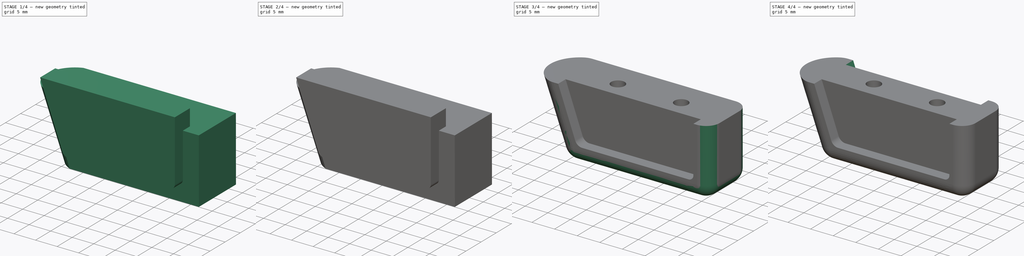
[diagram: build sequence overview — one tinted view per stage of 4, left to right]
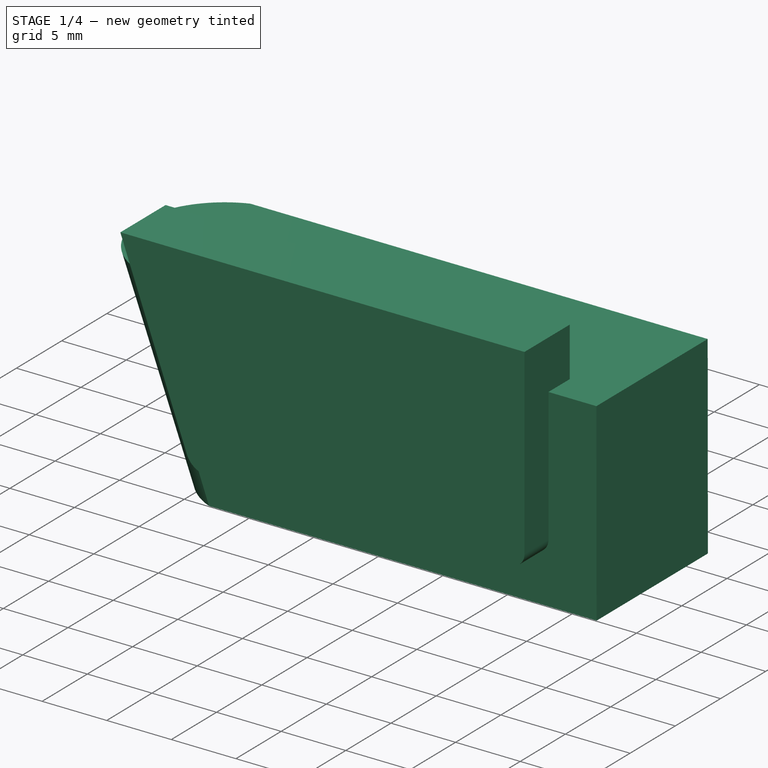
[diagram: stage 1 of 4 — iso view after this stage's code; geometry added in this stage tinted green]
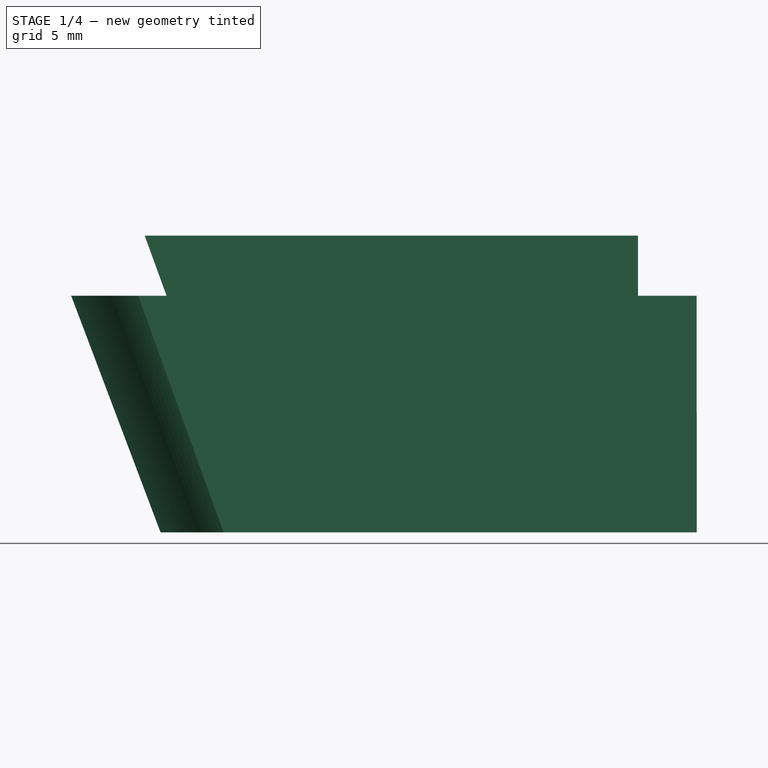
[diagram: stage 1 of 4 — front view after this stage's code; geometry added in this stage tinted green]
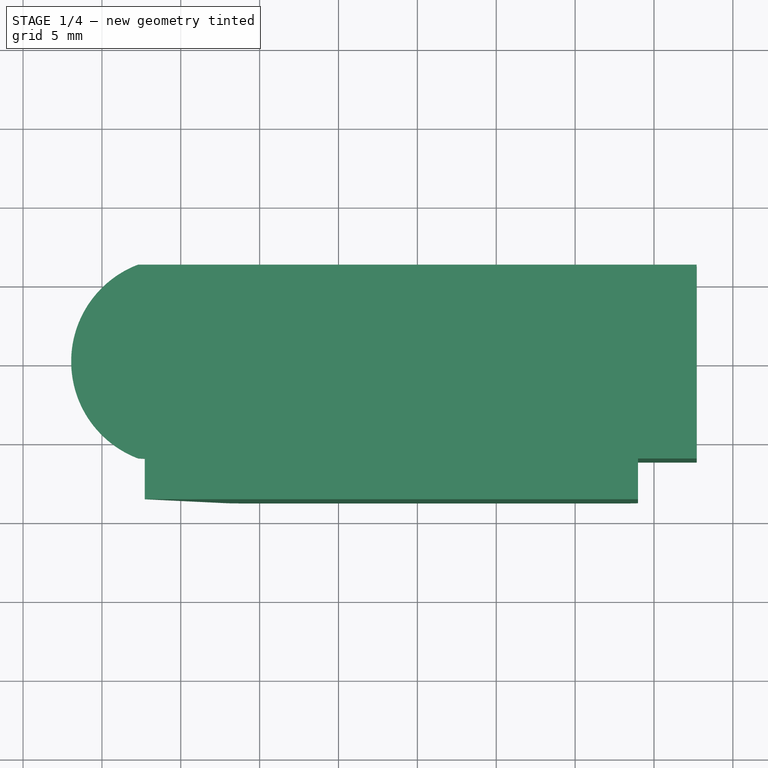
[diagram: stage 1 of 4 — top view after this stage's code; geometry added in this stage tinted green]
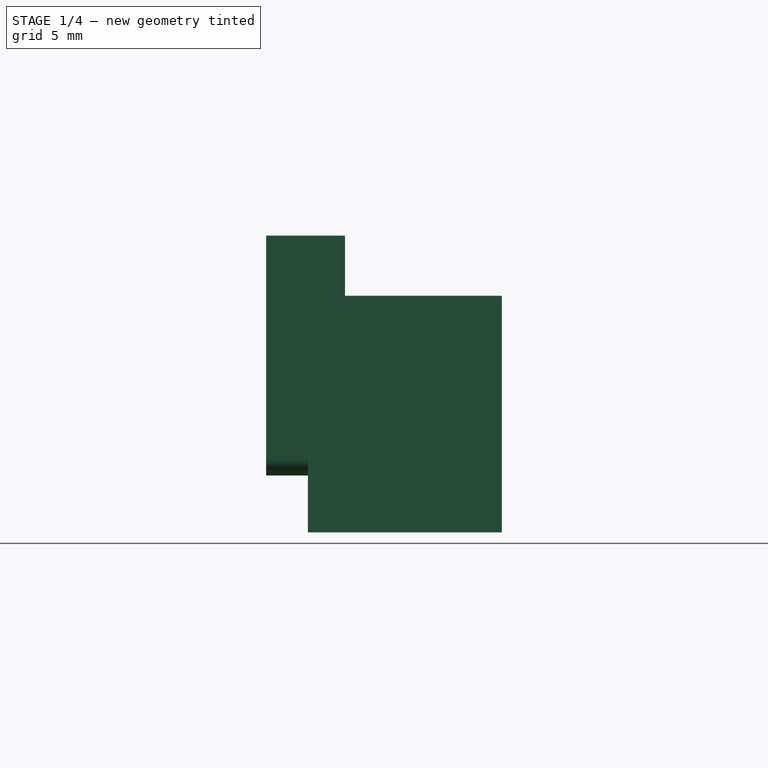
[diagram: stage 1 of 4 — right view after this stage's code; geometry added in this stage tinted green]
FCSTD DOCUMENT  (FreeCAD 0.16R6700 (Git))
Label: Magazine Bumper Pad 15mm - v2
License: FreeArt
LicenseURL: http://artlibre.org/licence/lal
objects: Sketcher::SketchObject×6, PartDesign::Pocket×2, PartDesign::Fillet×2, PartDesign::Pad×2, Part::Cut×2, Part::Loft×1
note: 19 computed .brp shape members not serialized (recipe doc carries the construction recipe); baked Part::Feature solids carry a one-line shape summary decoded from their .brp

FEATURE [Sketcher::SketchObject] Sketch
  sketch-geometry (6):
    g0: LineSegment StartX=-17.7 StartY=6.15 StartZ=0 EndX=17.7 EndY=6.15 EndZ=0
    g1: LineSegment StartX=17.7 StartY=6.15 StartZ=0 EndX=17.7 EndY=-6.15 EndZ=0
    g2: LineSegment StartX=17.7 StartY=-6.15 StartZ=0 EndX=-17.7 EndY=-6.15 EndZ=0
    g3: LineSegment [constr] StartX=-17.7 StartY=6.15 StartZ=0 EndX=-17.7 EndY=-6.15 EndZ=0
    g4: LineSegment [constr] StartX=17.7 StartY=0 StartZ=0 EndX=-21.95 EndY=0 EndZ=0
    g5: ArcOfCircle CenterX=-15.3753 CenterY=0 CenterZ=0 NormalX=0 NormalY=0 NormalZ=1 Radius=6.57471 StartAngle=1.9322 EndAngle=4.35099
  constraints (19):
    c: Horizontal(g0)
    c: Coincident(g0,g1)
    c: Vertical(g1)
    c: Coincident(g1,g2)
    c: Horizontal(g2)
    c: DistanceY(g1,g1) = 12.3
    c: Equal(g0,g2)
    c: DistanceX(g0,g0) = 35.4
    c: Coincident(g3,g0)
    c: Coincident(g3,g2)
    c: Symmetric(g0,g1,g-1)
    c: Symmetric(g0,g0,g-2)
    c: PointOnObject(g4,g1)
    c: Horizontal(g4)
    c: PointOnObject(g4,g-1)
    c: Distance(g4) = 39.65
    c: Coincident(g5,g0)
    c: Coincident(g5,g2)
    c: PointOnObject(g4,g5)
FEATURE [Sketcher::SketchObject] Sketch001
  Placement = pos=(0,0,-15) rot=(0,0,1;0rad)
  sketch-geometry (6):
    g0: LineSegment StartX=-12.2848 StartY=-6.15 StartZ=0 EndX=17.7152 EndY=-6.15 EndZ=0
    g1: LineSegment StartX=17.7152 StartY=-6.15 StartZ=0 EndX=17.7152 EndY=6.15 EndZ=0
    g2: LineSegment StartX=17.7152 StartY=6.15 StartZ=0 EndX=-12.2848 EndY=6.15 EndZ=0
    g3: GeomPoint [constr] X=17.7152 Y=0 Z=0
    g4: LineSegment [constr] StartX=-16.2848 StartY=0 StartZ=0 EndX=17.7152 EndY=0 EndZ=0
    g5: ArcOfCircle CenterX=-9.55699 CenterY=0 CenterZ=0 NormalX=0 NormalY=0 NormalZ=1 Radius=6.72781 StartAngle=1.98827 EndAngle=4.29491
  constraints (18):
    c: Horizontal(g0)
    c: Coincident(g0,g1)
    c: Vertical(g1)
    c: Coincident(g1,g2)
    c: Horizontal(g2)
    c: Symmetric(g1,g0,g-1)
    c: PointOnObject(g3,g-1)
    c: DistanceX(g-2,g3) = 17.7152
    c: PointOnObject(g3,g1)
    c: DistanceY(g1,g1) = 12.3
    c: Equal(g0,g2)
    c: DistanceX(g0,g0) = 30
    c: PointOnObject(g4,g-1)
    c: Coincident(g4,g3)
    c: DistanceX(g4,g4) = 34
    c: Coincident(g5,g0)
    c: Coincident(g5,g2)
    c: PointOnObject(g4,g5)
FEATURE [Part::Loft] Loft  label="Solido"
  Closed = false
  Ruled = false
  Sections = -> [Sketch,Sketch001]
  Solid = true
FEATURE [Sketcher::SketchObject] Sketch004
  Placement = pos=(0,-6.3,0) rot=(1,0,0;1.5708rad)
  sketch-geometry (6):
    g0: LineSegment StartX=-17.2882 StartY=3.81376 StartZ=0 EndX=13.9901 EndY=3.81376 EndZ=0
    g1: LineSegment StartX=13.9901 StartY=3.81376 StartZ=0 EndX=13.9901 EndY=-10.3321 EndZ=0
    g2: LineSegment StartX=12.9273 StartY=-11.3949 StartZ=0 EndX=-10.6085 EndY=-11.3949 EndZ=0
    g3: LineSegment StartX=-12.1441 StartY=-10.3197 StartZ=0 EndX=-17.2882 EndY=3.81376 EndZ=0
    g4: ArcOfCircle CenterX=-10.6085 CenterY=-9.76078 CenterZ=0 NormalX=0 NormalY=0 NormalZ=1 Radius=1.63408 StartAngle=3.49066 EndAngle=4.71239
    g5: ArcOfCircle CenterX=12.9273 CenterY=-10.3321 CenterZ=0 NormalX=0 NormalY=0 NormalZ=1 Radius=1.06278 StartAngle=4.71239 EndAngle=6.28319
  constraints (10):
    c: Coincident(g0,g1)
    c: Coincident(g3,g0)
    c: Horizontal(g0)
    c: Horizontal(g2)
    c: Vertical(g1)
    c: Tangent(g3,g4) = 1.5708
    c: Tangent(g2,g4) = 1.5708
    c: Tangent(g2,g5) = 1.5708
    c: Tangent(g1,g5) = 1.5708
    c: Angle(g2,g3) = 1.91986
FEATURE [PartDesign::Pad] Pad  label="Corte da Direita"
  Length = 5
  Length2 = 100
  Midplane = true
  Placement = pos=(0,-6.3,0) rot=(1,0,0;1.5708rad)
  Sketch = -> Sketch004
  Type = 0
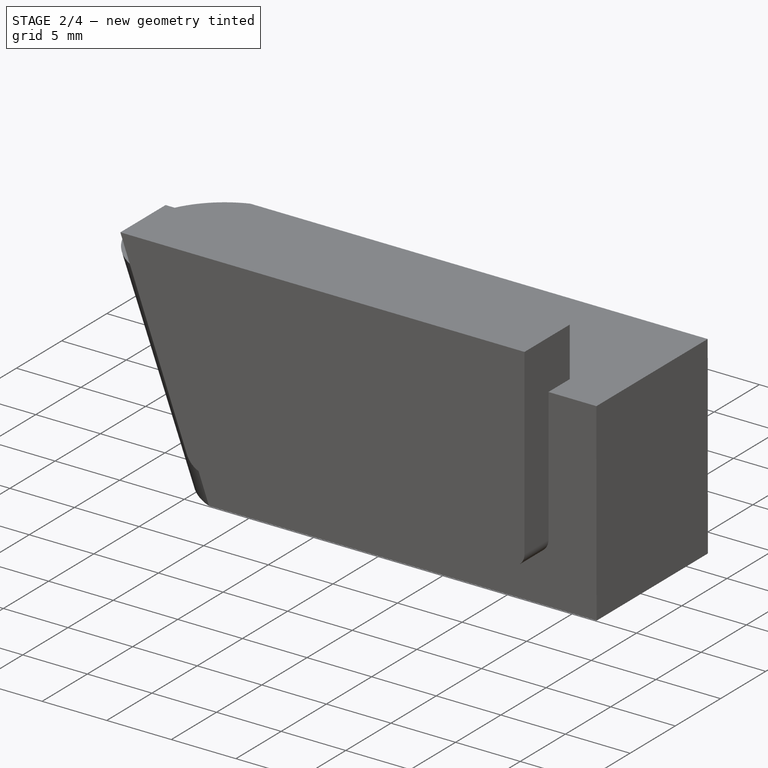
[diagram: stage 2 of 4 — iso view after this stage's code; geometry added in this stage tinted green]
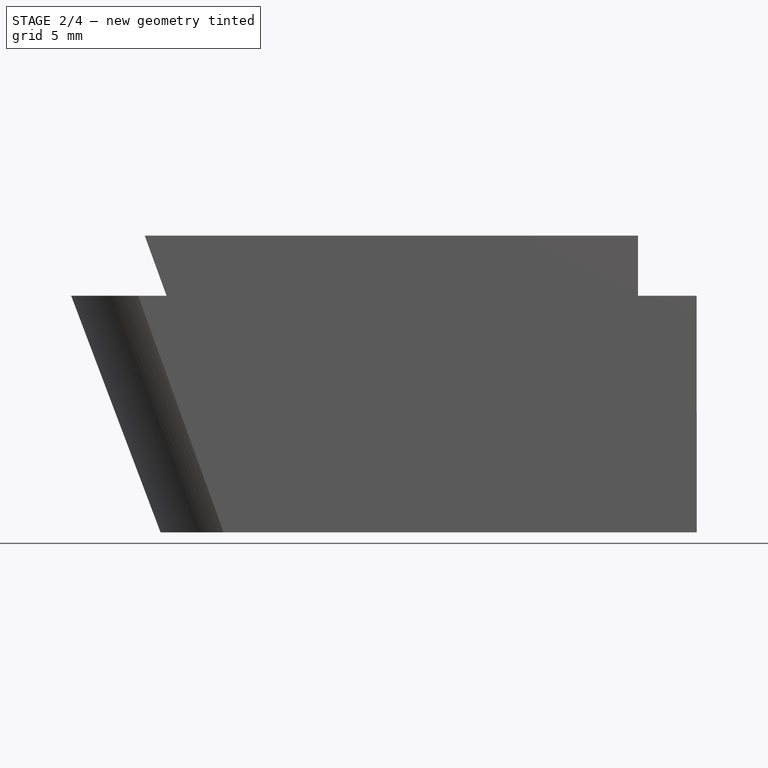
[diagram: stage 2 of 4 — front view after this stage's code; geometry added in this stage tinted green]
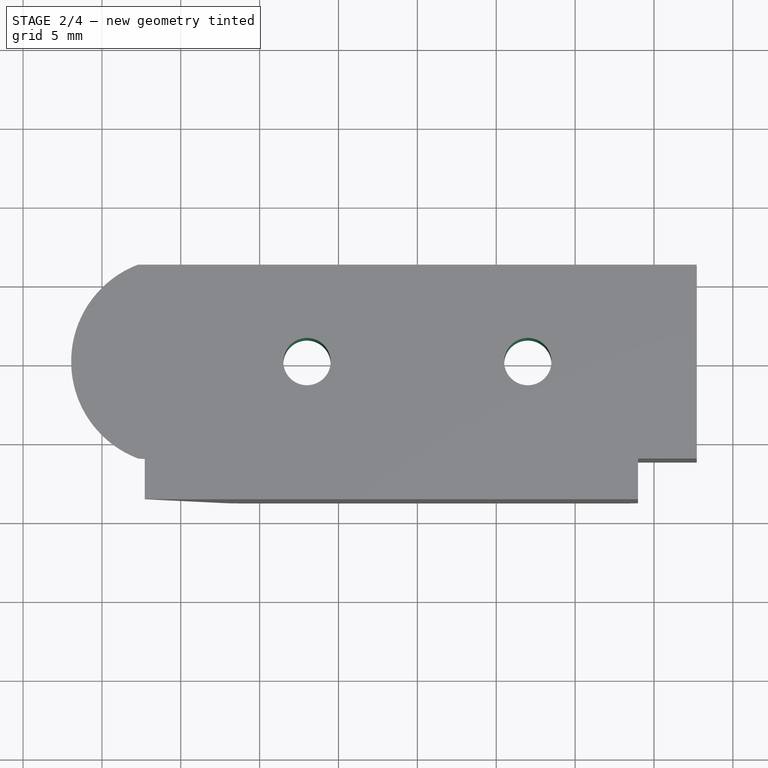
[diagram: stage 2 of 4 — top view after this stage's code; geometry added in this stage tinted green]
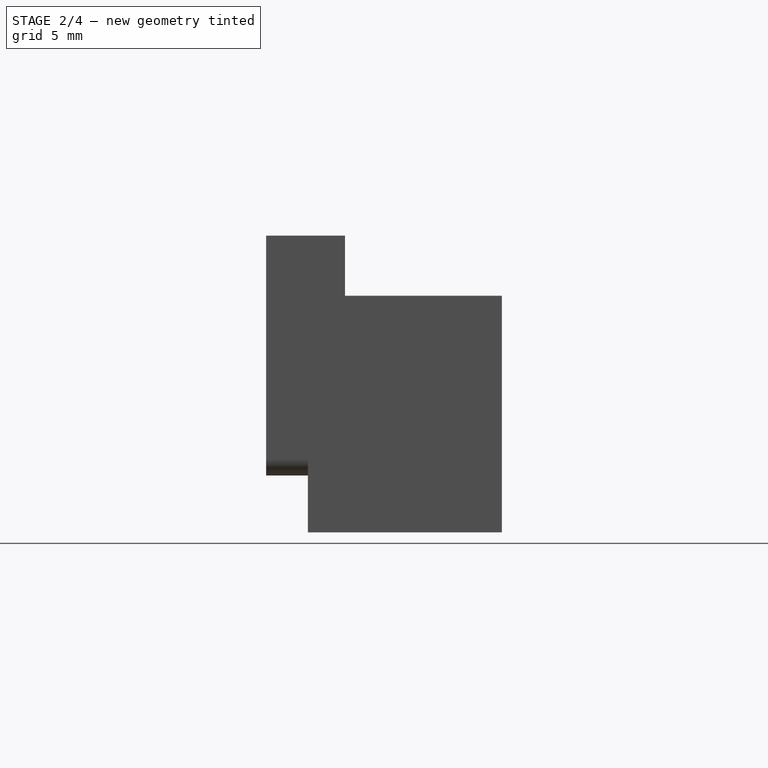
[diagram: stage 2 of 4 — right view after this stage's code; geometry added in this stage tinted green]
FEATURE [Sketcher::SketchObject] Sketch002
  Placement = pos=(0,0,-15) rot=(1,0,0;3.14159rad)
  Support = -> Loft [Face6]
  sketch-geometry (2):
    g0: Circle CenterX=-7 CenterY=0 CenterZ=0 NormalX=0 NormalY=0 NormalZ=1 Radius=1.5
    g1: Circle CenterX=7 CenterY=0 CenterZ=0 NormalX=0 NormalY=0 NormalZ=1 Radius=1.5
  constraints (6):
    c: PointOnObject(g0,g-1)
    c: PointOnObject(g1,g-1)
    c: Radius(g0) = 1.5
    c: Radius(g1) = 1.5
    c: Symmetric(g0,g1,g-2)
    c: DistanceX(g-2,g1) = 7
FEATURE [PartDesign::Pocket] Pocket  label="Furos Parafusos"
  Length = 5
  Sketch = -> Sketch002
  Type = 1
FEATURE [Sketcher::SketchObject] Sketch003
  Placement = pos=(0,0,-15) rot=(1,0,0;3.14159rad)
  Support = -> Pocket [Face4]
  sketch-geometry (2):
    g0: Circle CenterX=-7 CenterY=0 CenterZ=0 NormalX=0 NormalY=0 NormalZ=1 Radius=3
    g1: Circle CenterX=7 CenterY=0 CenterZ=0 NormalX=0 NormalY=0 NormalZ=1 Radius=3
  constraints (6):
    c: PointOnObject(g0,g-1)
    c: PointOnObject(g1,g-1)
    c: Radius(g1) = 3
    c: Radius(g0) = 3
    c: Symmetric(g0,g1,g-2)
    c: DistanceX(g-2,g1) = 7
FEATURE [PartDesign::Pocket] Pocket001
  Length = 5
  Sketch = -> Sketch003
  Type = 0
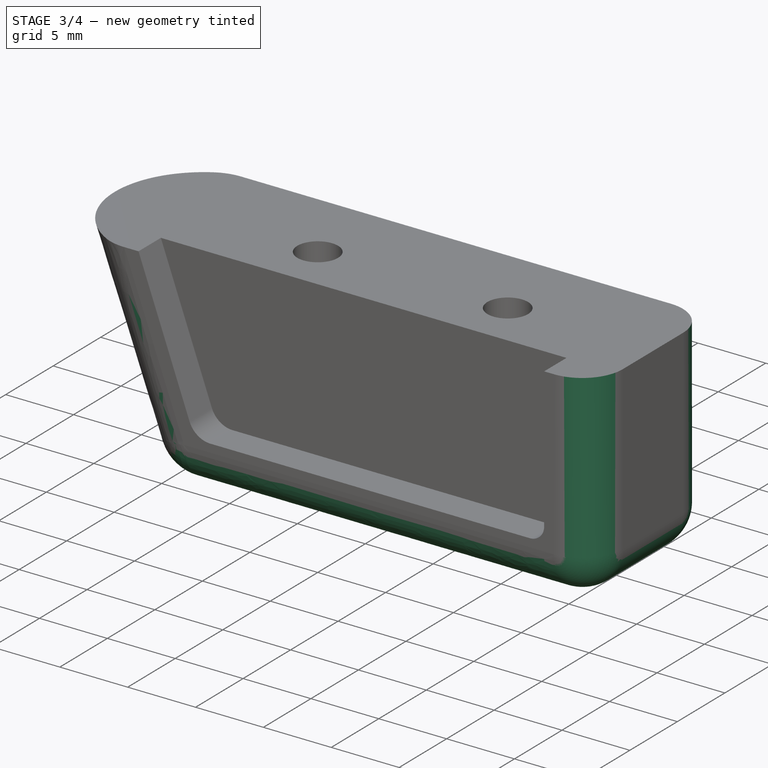
[diagram: stage 3 of 4 — iso view after this stage's code; geometry added in this stage tinted green]
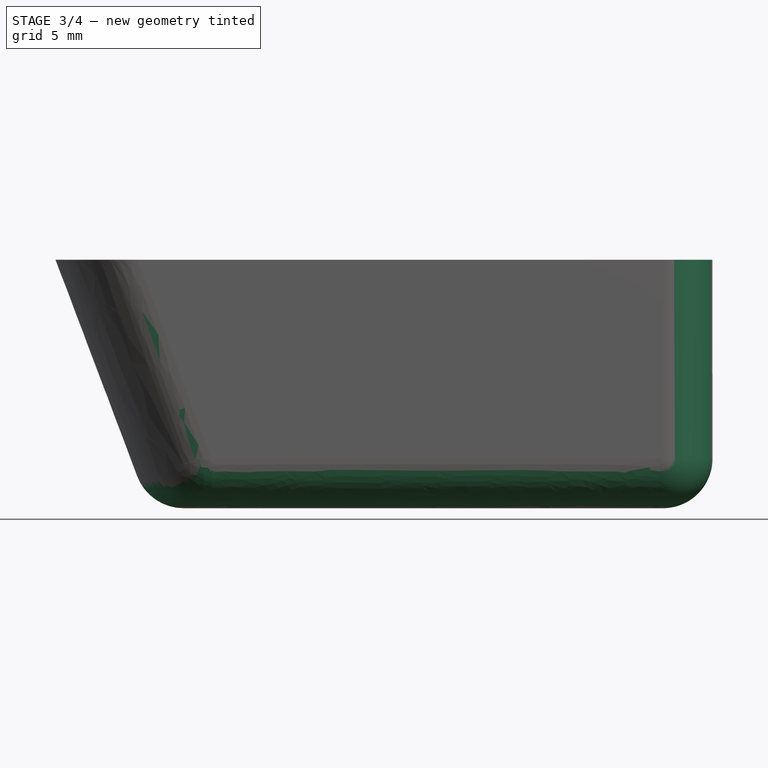
[diagram: stage 3 of 4 — front view after this stage's code; geometry added in this stage tinted green]
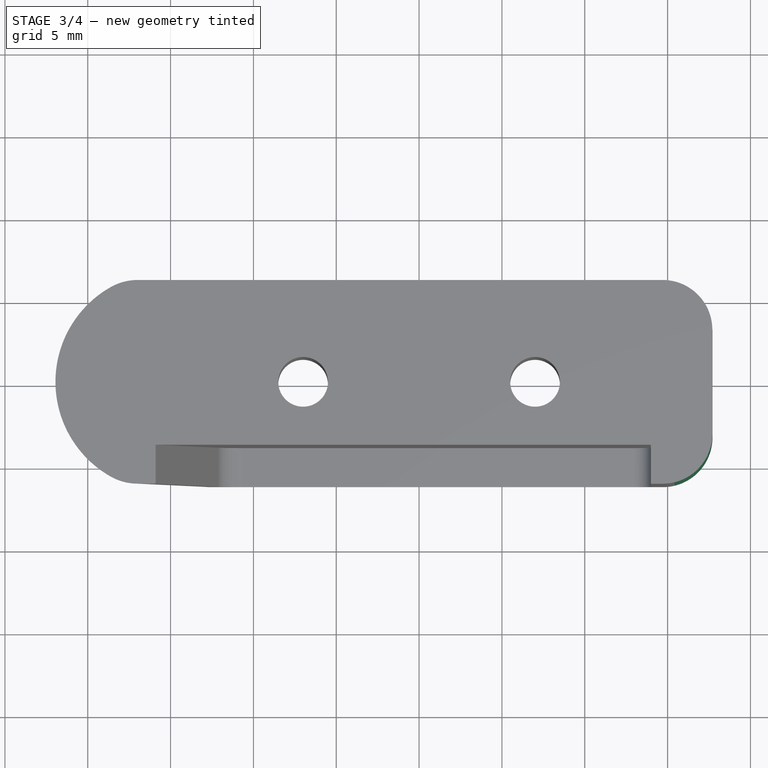
[diagram: stage 3 of 4 — top view after this stage's code; geometry added in this stage tinted green]
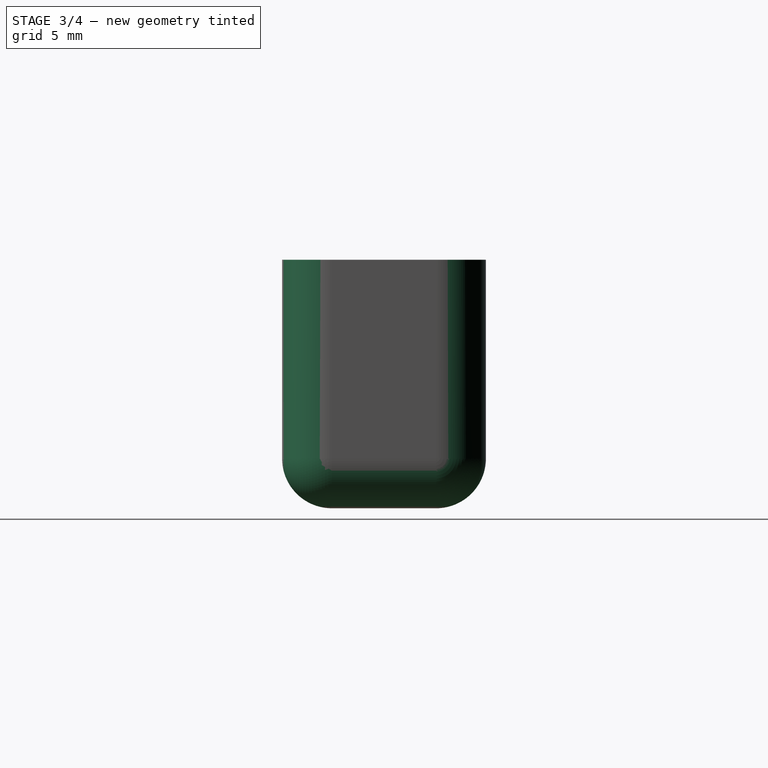
[diagram: stage 3 of 4 — right view after this stage's code; geometry added in this stage tinted green]
FEATURE [PartDesign::Fillet] Fillet  label="Chanfros Laterais"
  Base = -> Pocket001 [Edge3,Edge11,Edge13,Edge2,Edge10]
  Radius = 3
FEATURE [PartDesign::Fillet] Fillet001  label="Chanfro Frontal"
  Base = -> Fillet [Edge3,Edge14,Edge15,Edge17,Edge16]
  Radius = 3
FEATURE [Part::Cut] Cut
  Base = -> Fillet001
  Tool = -> Pad
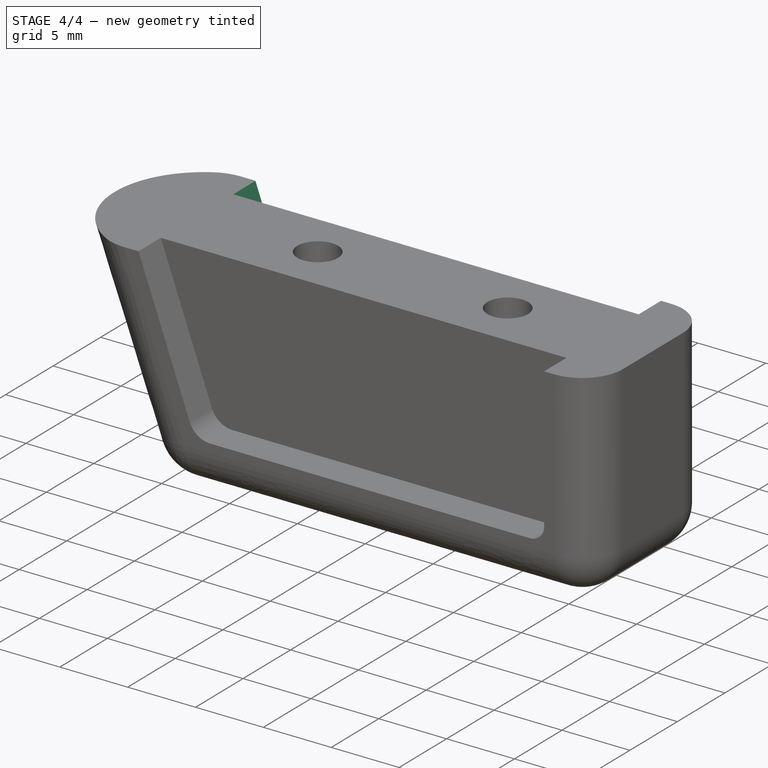
[diagram: stage 4 of 4 — iso view after this stage's code; geometry added in this stage tinted green]
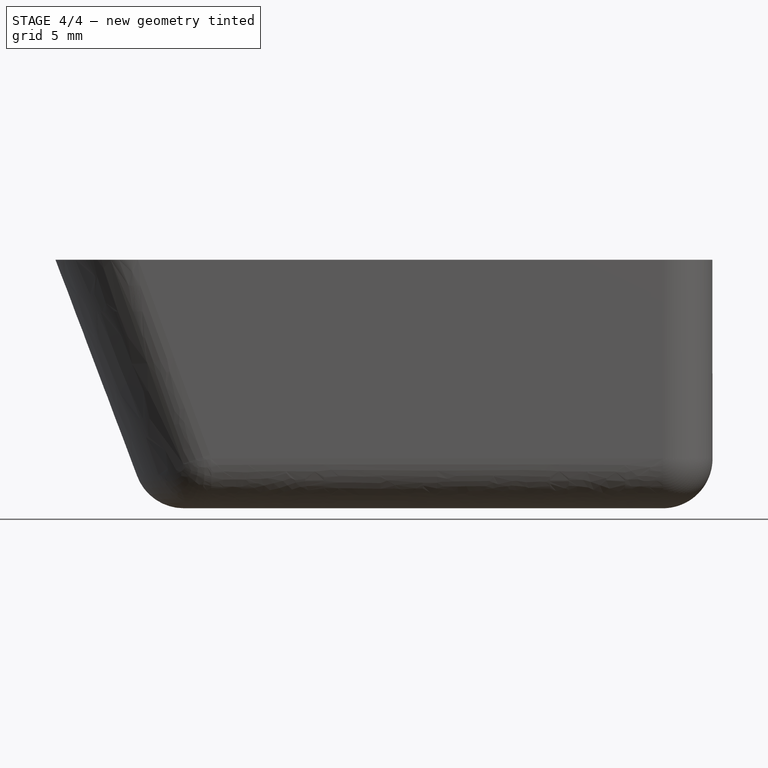
[diagram: stage 4 of 4 — front view after this stage's code; geometry added in this stage tinted green]
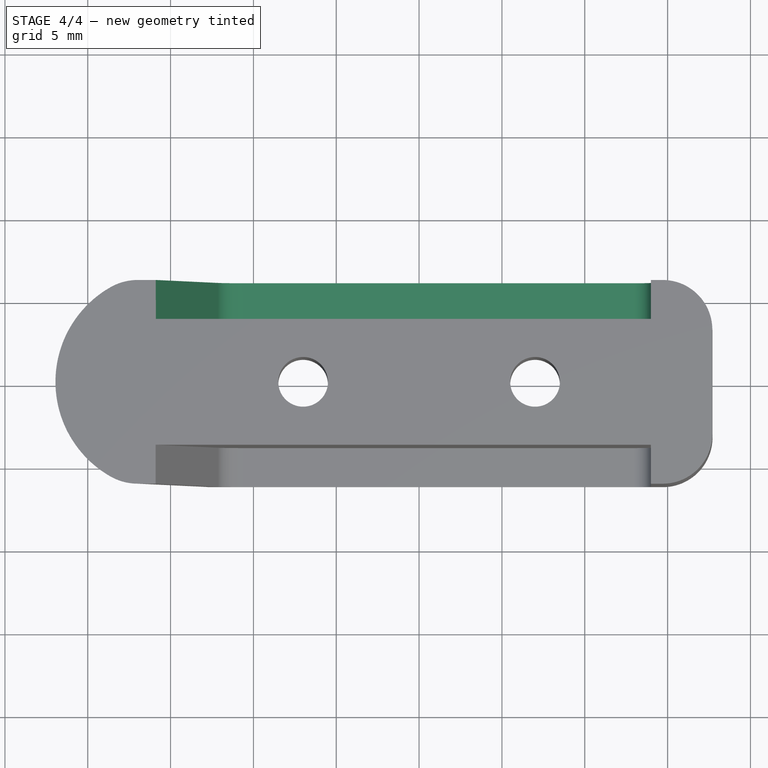
[diagram: stage 4 of 4 — top view after this stage's code; geometry added in this stage tinted green]
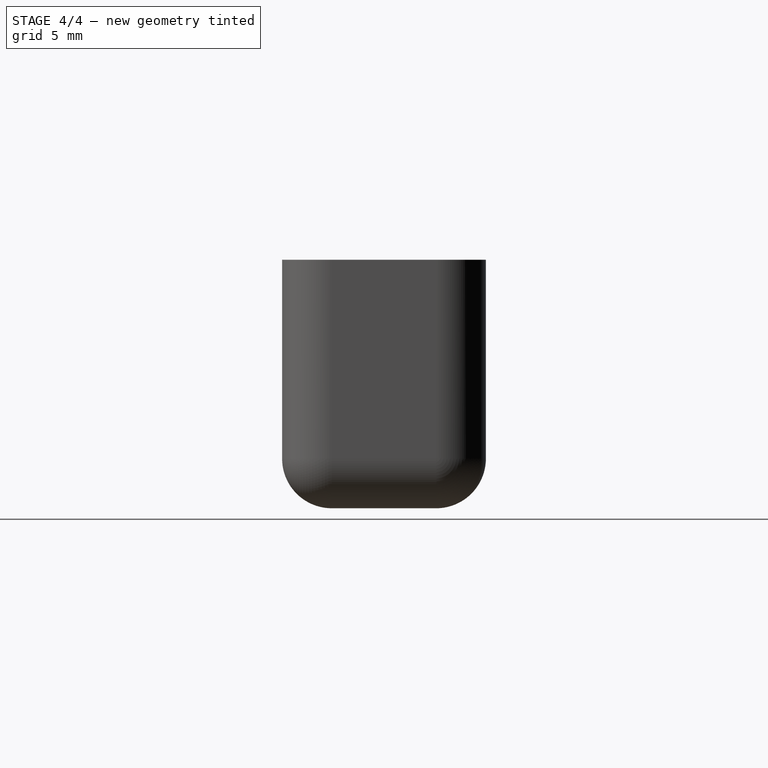
[diagram: stage 4 of 4 — right view after this stage's code; geometry added in this stage tinted green]
FEATURE [Sketcher::SketchObject] Sketch005
  Placement = pos=(0,6.3,0) rot=(1,0,0;1.55334rad)
  sketch-geometry (6):
    g0: LineSegment StartX=-17.2882 StartY=3.81376 StartZ=0 EndX=13.9901 EndY=3.81376 EndZ=0
    g1: LineSegment StartX=13.9901 StartY=3.81376 StartZ=0 EndX=13.9901 EndY=-10.3321 EndZ=0
    g2: LineSegment StartX=12.9273 StartY=-11.3949 StartZ=0 EndX=-10.6085 EndY=-11.3949 EndZ=0
    g3: LineSegment StartX=-12.1441 StartY=-10.3197 StartZ=0 EndX=-17.2882 EndY=3.81376 EndZ=0
    g4: ArcOfCircle CenterX=-10.6085 CenterY=-9.76078 CenterZ=0 NormalX=0 NormalY=0 NormalZ=1 Radius=1.63408 StartAngle=3.49066 EndAngle=4.71239
    g5: ArcOfCircle CenterX=12.9273 CenterY=-10.3321 CenterZ=0 NormalX=0 NormalY=0 NormalZ=1 Radius=1.06278 StartAngle=4.71239 EndAngle=6.28319
  constraints (10):
    c: Coincident(g0,g1)
    c: Coincident(g3,g0)
    c: Horizontal(g0)
    c: Horizontal(g2)
    c: Vertical(g1)
    c: Tangent(g3,g4) = 1.5708
    c: Tangent(g2,g4) = 1.5708
    c: Tangent(g2,g5) = 1.5708
    c: Tangent(g1,g5) = 1.5708
    c: Angle(g2,g3) = 1.91986
FEATURE [PartDesign::Pad] Pad001  label="Corte da Esquerda"
  Length = 5
  Length2 = 100
  Midplane = true
  Placement = pos=(0,6.3,0) rot=(1,0,0;1.55334rad)
  Sketch = -> Sketch005
  Type = 0
FEATURE [Part::Cut] Cut001  label="Cortes Externos"
  Base = -> Cut
  Tool = -> Pad001
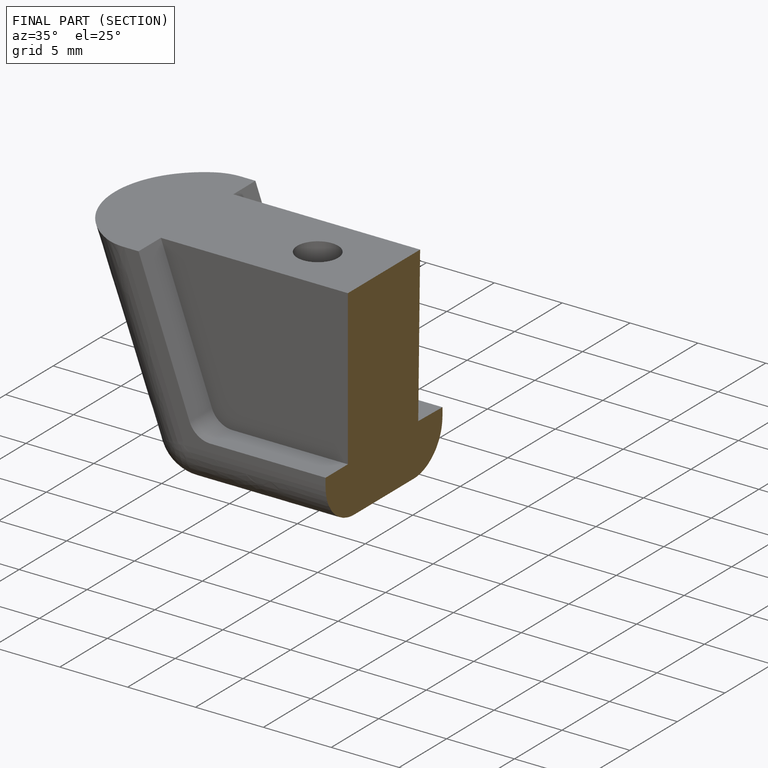
[diagram: finished part — half-section view (interior)]
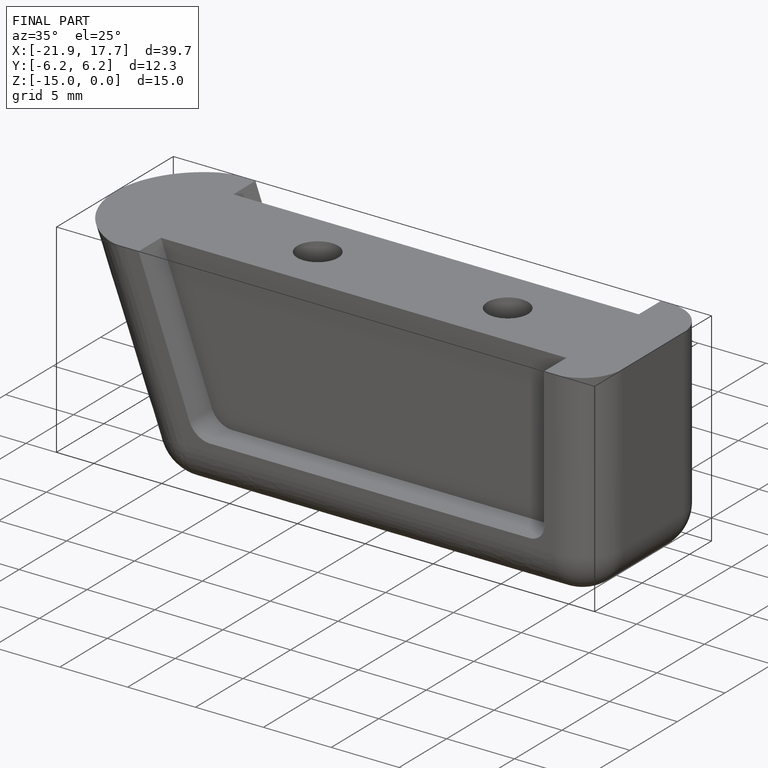
[diagram: finished part — iso view with bounding-box wireframe]
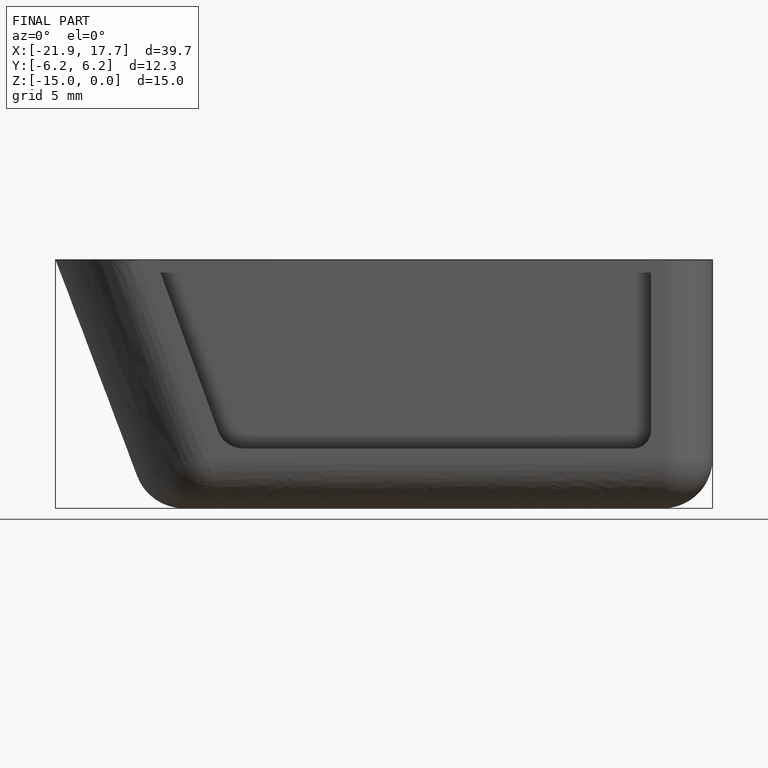
[diagram: finished part — front view with bounding-box wireframe]
